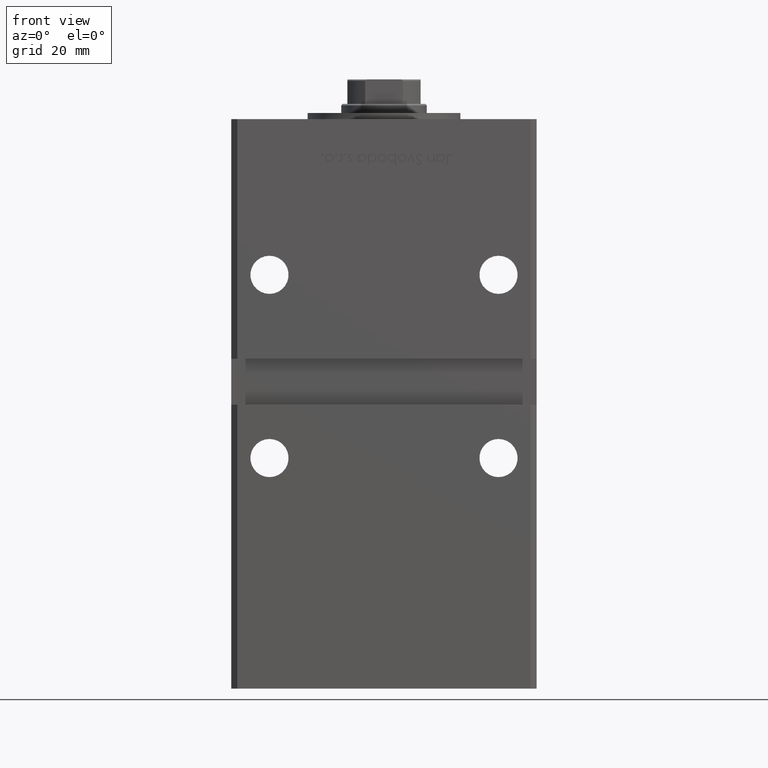
[diagram: clean part render]
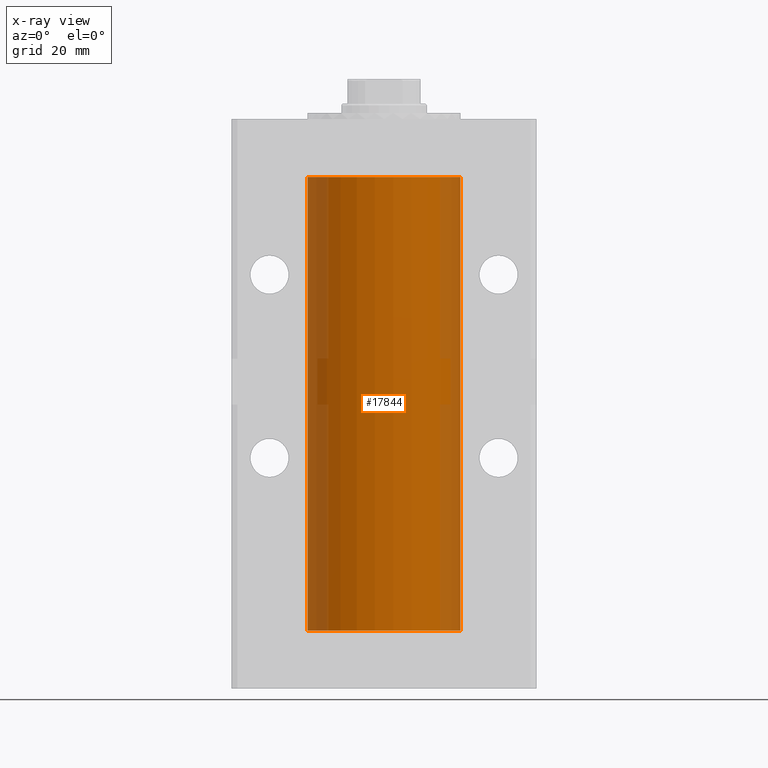
[diagram: x-ray — body ghosted, one internal face saturated and labeled with its STEP entity id]
A machine part, front view, then the same camera in x-ray: the body is ghosted and one INTERNAL B-rep face — a face not visible from any outside direction — is saturated and labeled: STEP entity #17844.
In plain terms, the highlighted cylindrical surface (partial cylindrical patch) has radius 25 mm, axis along (-0, -0, -1).
Its self-contained STEP definition (entity closure, byte-faithful):
#2331 = CYLINDRICAL_SURFACE ( 'NONE', #49933, 25.00000000000000000 ) ;
#3730 = EDGE_CURVE ( 'NONE', #5267, #25559, #11813, .T. ) ;
#5267 = VERTEX_POINT ( 'NONE', #17200 ) ;
#5617 = ORIENTED_EDGE ( 'NONE', *, *, #22031, .F. ) ;
#5867 = ORIENTED_EDGE ( 'NONE', *, *, #3730, .T. ) ;
#6259 = CARTESIAN_POINT ( 'NONE',  ( -25.00000000000000000, 0.000000000000000000, 148.5000000000000000 ) ) ;
#7333 = FACE_OUTER_BOUND ( 'NONE', #33486, .T. ) ;
#10548 = LINE ( 'NONE', #6259, #33824 ) ;
#10650 = DIRECTION ( 'NONE',  ( -1.000000000000000000, 0.000000000000000000, 0.000000000000000000 ) ) ;
#11813 = CIRCLE ( 'NONE', #22981, 25.00000000000000000 ) ;
#12680 = LINE ( 'NONE', #20762, #43533 ) ;
#17200 = CARTESIAN_POINT ( 'NONE',  ( -25.00000000000000000, 0.000000000000000000, 148.5000000000000000 ) ) ;
#17844 = ADVANCED_FACE ( 'NONE', ( #7333 ), #2331, .F. ) ;
#18472 = CARTESIAN_POINT ( 'NONE',  ( 0.000000000000000000, 0.000000000000000000, 148.5000000000000000 ) ) ;
#20762 = CARTESIAN_POINT ( 'NONE',  ( 25.00000000000000000, 3.061616997868383043E-15, 148.5000000000000000 ) ) ;
#20873 = AXIS2_PLACEMENT_3D ( 'NONE', #52749, #40663, #39592 ) ;
#21235 = VERTEX_POINT ( 'NONE', #48436 ) ;
#22031 = EDGE_CURVE ( 'NONE', #21235, #25419, #42295, .T. ) ;
#22671 = DIRECTION ( 'NONE',  ( -0.000000000000000000, -0.000000000000000000, -1.000000000000000000 ) ) ;
#22981 = AXIS2_PLACEMENT_3D ( 'NONE', #28817, #41163, #40626 ) ;
#25419 = VERTEX_POINT ( 'NONE', #45015 ) ;
#25559 = VERTEX_POINT ( 'NONE', #33974 ) ;
#28817 = CARTESIAN_POINT ( 'NONE',  ( 0.000000000000000000, 0.000000000000000000, 148.5000000000000000 ) ) ;
#29399 = EDGE_CURVE ( 'NONE', #5267, #21235, #10548, .T. ) ;
#29527 = ORIENTED_EDGE ( 'NONE', *, *, #29399, .F. ) ;
#33116 = DIRECTION ( 'NONE',  ( -0.000000000000000000, -0.000000000000000000, -1.000000000000000000 ) ) ;
#33486 = EDGE_LOOP ( 'NONE', ( #5867, #44062, #5617, #29527 ) ) ;
#33824 = VECTOR ( 'NONE', #22671, 1000.000000000000000 ) ;
#33974 = CARTESIAN_POINT ( 'NONE',  ( 25.00000000000000000, 3.061616997868383043E-15, 148.5000000000000000 ) ) ;
#39592 = DIRECTION ( 'NONE',  ( 1.000000000000000000, 0.000000000000000000, 0.000000000000000000 ) ) ;
#40626 = DIRECTION ( 'NONE',  ( 1.000000000000000000, 0.000000000000000000, 0.000000000000000000 ) ) ;
#40663 = DIRECTION ( 'NONE',  ( -0.000000000000000000, 0.000000000000000000, 1.000000000000000000 ) ) ;
#41163 = DIRECTION ( 'NONE',  ( -0.000000000000000000, 0.000000000000000000, 1.000000000000000000 ) ) ;
#42295 = CIRCLE ( 'NONE', #20873, 25.00000000000000000 ) ;
#43533 = VECTOR ( 'NONE', #33116, 1000.000000000000000 ) ;
#44062 = ORIENTED_EDGE ( 'NONE', *, *, #48790, .T. ) ;
#45015 = CARTESIAN_POINT ( 'NONE',  ( 25.00000000000000000, 3.061616997868383043E-15, 0.000000000000000000 ) ) ;
#48436 = CARTESIAN_POINT ( 'NONE',  ( -25.00000000000000000, 0.000000000000000000, 0.000000000000000000 ) ) ;
#48740 = DIRECTION ( 'NONE',  ( -0.000000000000000000, -0.000000000000000000, -1.000000000000000000 ) ) ;
#48790 = EDGE_CURVE ( 'NONE', #25559, #25419, #12680, .T. ) ;
#49933 = AXIS2_PLACEMENT_3D ( 'NONE', #18472, #48740, #10650 ) ;
#52749 = CARTESIAN_POINT ( 'NONE',  ( 0.000000000000000000, 0.000000000000000000, 0.000000000000000000 ) ) ;